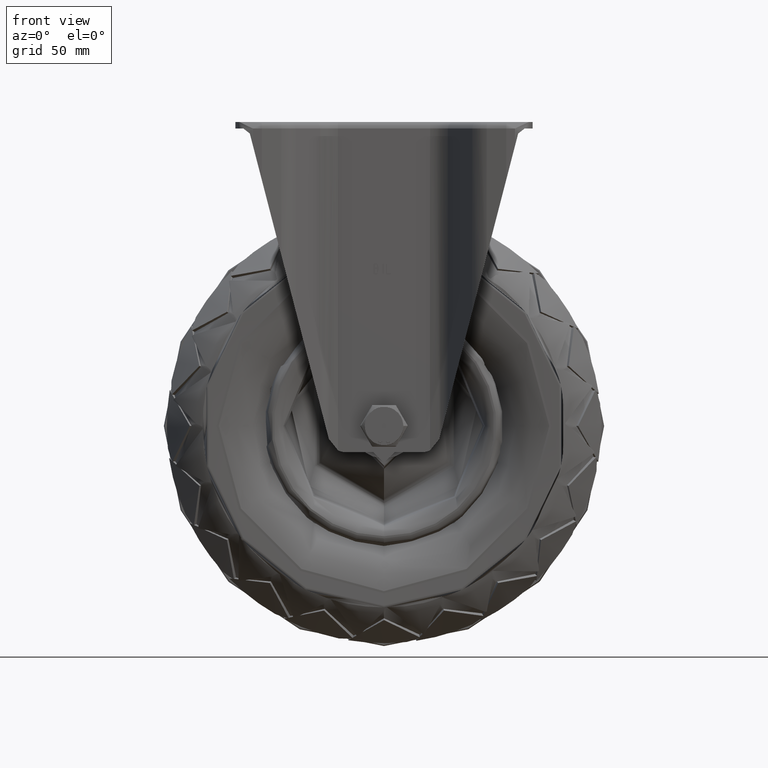
[diagram: clean part render]
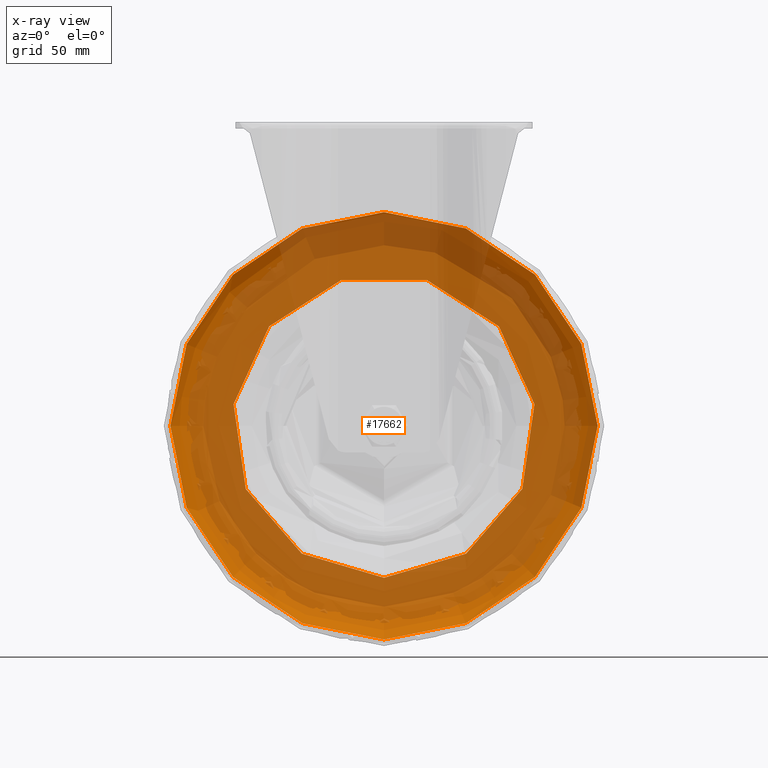
[diagram: x-ray — body ghosted, one internal face saturated and labeled with its STEP entity id]
A machine part, front view, then the same camera in x-ray: the body is ghosted and one INTERNAL B-rep face — a face not visible from any outside direction — is saturated and labeled: STEP entity #17662.
In plain terms, the highlighted toroidal blend (fillet) surface has major radius 76.0024 mm and minor (blend) radius 20.9976 mm.
Its self-contained STEP definition (entity closure, byte-faithful):
#443=TOROIDAL_SURFACE('',#19183,76.0024282047503,20.9975698441245);
#1955=FACE_OUTER_BOUND('',#3068,.T.);
#3068=EDGE_LOOP('',(#15606,#15607,#15608,#15609));
#3884=CIRCLE('',#19169,96.9964188550429);
#3893=CIRCLE('',#19182,68.9999999999998);
#3894=CIRCLE('',#19184,20.9975698441245);
#8330=VERTEX_POINT('',#45835);
#8334=VERTEX_POINT('',#45851);
#10795=EDGE_CURVE('',#8330,#8330,#3884,.T.);
#10804=EDGE_CURVE('',#8334,#8334,#3893,.T.);
#10805=EDGE_CURVE('',#8334,#8330,#3894,.T.);
#15606=ORIENTED_EDGE('',*,*,#10804,.F.);
#15607=ORIENTED_EDGE('',*,*,#10805,.T.);
#15608=ORIENTED_EDGE('',*,*,#10795,.T.);
#15609=ORIENTED_EDGE('',*,*,#10805,.F.);
#17662=ADVANCED_FACE('',(#1955),#443,.T.);
#19169=AXIS2_PLACEMENT_3D('',#45836,#22491,#22492);
#19182=AXIS2_PLACEMENT_3D('',#45853,#22517,#22518);
#19183=AXIS2_PLACEMENT_3D('',#45854,#22519,#22520);
#19184=AXIS2_PLACEMENT_3D('',#45855,#22521,#22522);
#22491=DIRECTION('center_axis',(0.,1.,3.22267519511875E-15));
#22492=DIRECTION('ref_axis',(0.,-3.22267519511875E-15,1.));
#22517=DIRECTION('center_axis',(0.,1.,3.22267519511875E-15));
#22518=DIRECTION('ref_axis',(0.,-3.22267519511875E-15,1.));
#22519=DIRECTION('center_axis',(0.,1.,3.22267519511875E-15));
#22520=DIRECTION('ref_axis',(0.,-3.22267519511875E-15,1.));
#22521=DIRECTION('center_axis',(-1.,-3.94663886239375E-31,1.22464679914735E-16));
#22522=DIRECTION('ref_axis',(-1.22464679914735E-16,3.22267519511875E-15,
-1.));
#45835=CARTESIAN_POINT('',(1.18786353879584E-14,0.387680195924069,-96.9964188550428));
#45836=CARTESIAN_POINT('Origin',(0.,0.387680195923755,1.39948706036673E-13));
#45851=CARTESIAN_POINT('',(8.45006291411671E-15,19.7955535056795,-68.9999999999996));
#45853=CARTESIAN_POINT('Origin',(0.,19.7955535056792,2.02493977942029E-13));
#45854=CARTESIAN_POINT('Origin',(0.,2.43196416668264E-13,1.38777878078145E-13));
#45855=CARTESIAN_POINT('Origin',(-9.3076130428374E-15,4.88127556812507E-13,
-76.0024282047502));